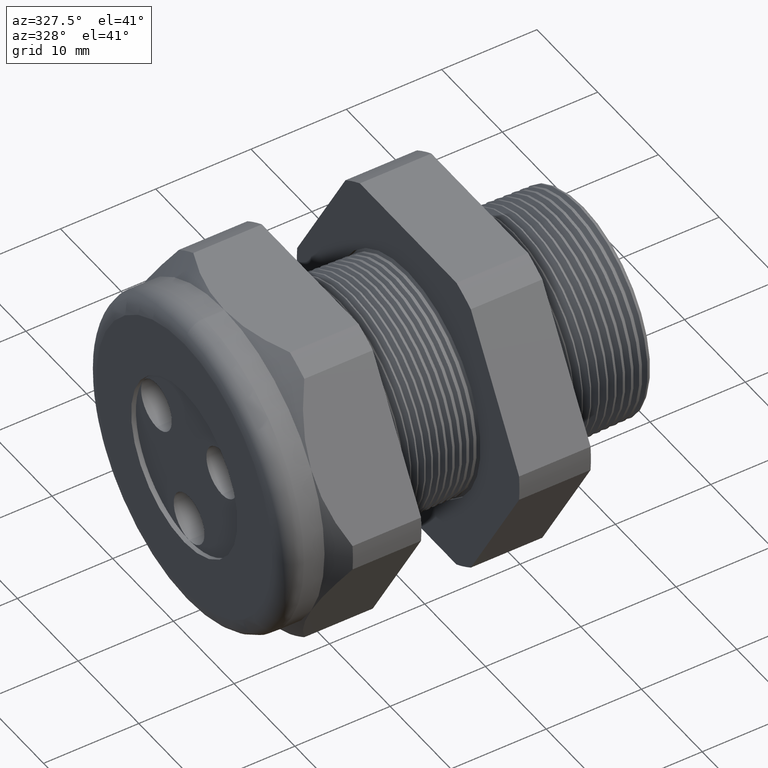
[diagram: clean part render]
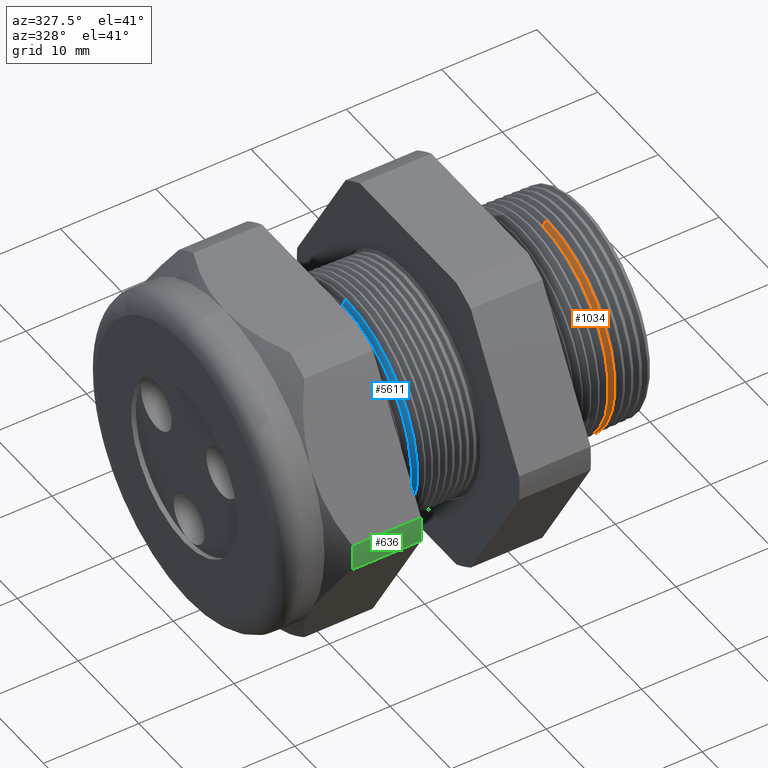
[diagram: same view with three faces highlighted in distinct colors, each labeled with its STEP entity id]
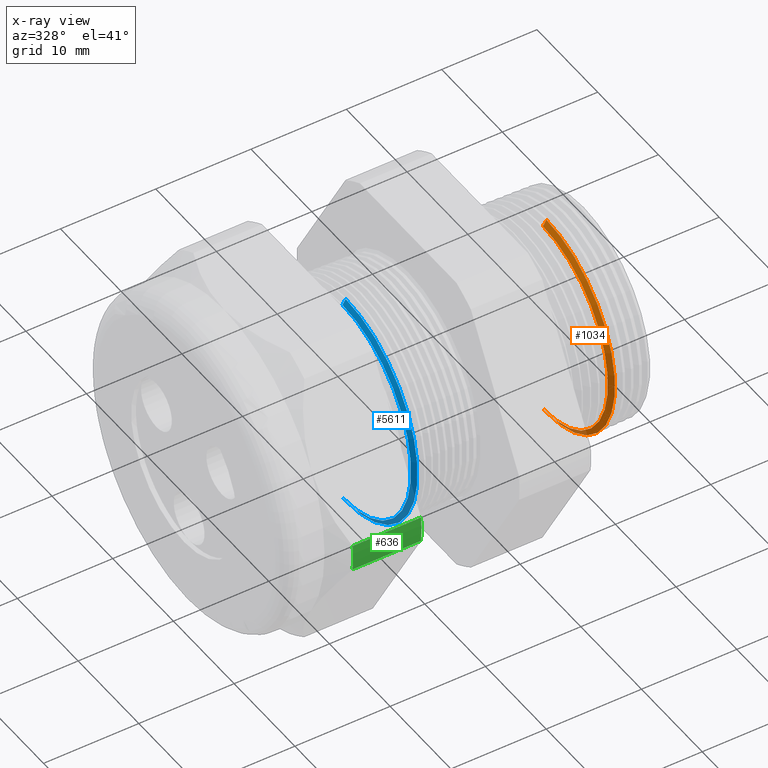
[diagram: x-ray of the same camera — body ghosted, the three highlighted faces saturated]
A machine part, auxiliary view with three faces highlighted in distinct colors.
The next image is the same camera in x-ray (body ghosted, the three faces saturated) — at least one of them is partly hidden behind the body in this view.
Their STEP definitions:

[orange] entity #1034 — the highlighted conical surface has half-angle 58.5 deg.
#1031 = EDGE_CURVE ( 'NONE', #1495, #1494, #3548, .T. ) ;
#1034 = ADVANCED_FACE ( 'NONE', ( #3607 ), #3606, .T. ) ;
#1035 = EDGE_LOOP ( 'NONE', ( #1036, #1037, #1038, #1090 ) ) ;
#1036 = ORIENTED_EDGE ( 'NONE', *, *, #1500, .F. ) ;
#1037 = ORIENTED_EDGE ( 'NONE', *, *, #1031, .T. ) ;
#1038 = ORIENTED_EDGE ( 'NONE', *, *, #1442, .T. ) ;
#1090 = ORIENTED_EDGE ( 'NONE', *, *, #5669, .T. ) ;
#1440 = VERTEX_POINT ( 'NONE', #4242 ) ;
#1442 = EDGE_CURVE ( 'NONE', #1494, #1440, #4303, .T. ) ;
#1486 = VERTEX_POINT ( 'NONE', #4394 ) ;
#1494 = VERTEX_POINT ( 'NONE', #4378 ) ;
#1495 = VERTEX_POINT ( 'NONE', #4377 ) ;
#1500 = EDGE_CURVE ( 'NONE', #1495, #1486, #4371, .T. ) ;
#3546 = DIRECTION ( 'NONE',  ( 1.000000000000000000, 0.0000000000000000000, 0.0000000000000000000 ) ) ;
#3547 = AXIS2_PLACEMENT_3D ( 'NONE', #3552, #3546, #3608 ) ;
#3548 = CIRCLE ( 'NONE', #3547, 0.4212184895733915900 ) ;
#3552 = CARTESIAN_POINT ( 'NONE',  ( -0.04847073567907520000, 0.0000000000000000000, 0.0000000000000000000 ) ) ;
#3601 = DIRECTION ( 'NONE',  ( 0.0000000000000000000, 0.0000000000000000000, -1.000000000000000000 ) ) ;
#3602 = DIRECTION ( 'NONE',  ( 1.000000000000000000, 0.0000000000000000000, 0.0000000000000000000 ) ) ;
#3603 = CARTESIAN_POINT ( 'NONE',  ( -0.04847073567907520000, 0.0000000000000000000, 0.0000000000000000000 ) ) ;
#3604 = AXIS2_PLACEMENT_3D ( 'NONE', #3603, #3602, #3601 ) ;
#3606 = CONICAL_SURFACE ( 'NONE', #3604, 0.4212184895733915900, 1.021017612416699400 ) ;
#3607 = FACE_OUTER_BOUND ( 'NONE', #1035, .T. ) ;
#3608 = DIRECTION ( 'NONE',  ( 0.0000000000000000000, 0.0000000000000000000, -1.000000000000000000 ) ) ;
#4242 = CARTESIAN_POINT ( 'NONE',  ( -0.03424021830932415200, 5.442827378131301400E-017, -0.4444405833519353700 ) ) ;
#4300 = DIRECTION ( 'NONE',  ( 0.5224985647159347000, 0.0000000000000000000, -0.8526401643541008400 ) ) ;
#4301 = VECTOR ( 'NONE', #4300, 39.37007874015748100 ) ;
#4302 = CARTESIAN_POINT ( 'NONE',  ( -0.04847073567907520000, 0.0000000000000000000, -0.4212184895733915900 ) ) ;
#4303 = LINE ( 'NONE', #4302, #4301 ) ;
#4369 = DIRECTION ( 'NONE',  ( 0.5224985647159347000, 1.044183048100722800E-016, 0.8526401643541008400 ) ) ;
#4370 = CARTESIAN_POINT ( 'NONE',  ( -0.04847073567907520000, 5.158438749977368000E-017, 0.4212184895733915900 ) ) ;
#4371 = LINE ( 'NONE', #4370, #4430 ) ;
#4377 = CARTESIAN_POINT ( 'NONE',  ( -0.04847073567907520000, 0.0000000000000000000, 0.4212184895733915900 ) ) ;
#4378 = CARTESIAN_POINT ( 'NONE',  ( -0.04847073567907520000, 5.304998578798863200E-017, -0.4212184895733915900 ) ) ;
#4394 = CARTESIAN_POINT ( 'NONE',  ( -0.03424021830932415200, 0.0000000000000000000, 0.4444405833519353700 ) ) ;
#4430 = VECTOR ( 'NONE', #4369, 39.37007874015748100 ) ;
#5157 = DIRECTION ( 'NONE',  ( 0.0000000000000000000, 0.0000000000000000000, -1.000000000000000000 ) ) ;
#5158 = DIRECTION ( 'NONE',  ( -1.000000000000000000, 0.0000000000000000000, 0.0000000000000000000 ) ) ;
#5159 = CARTESIAN_POINT ( 'NONE',  ( -0.03424021830932415200, 0.0000000000000000000, 0.0000000000000000000 ) ) ;
#5160 = AXIS2_PLACEMENT_3D ( 'NONE', #5159, #5158, #5157 ) ;
#5161 = CIRCLE ( 'NONE', #5160, 0.4444405833519353700 ) ;
#5669 = EDGE_CURVE ( 'NONE', #1440, #1486, #5161, .T. ) ;

[blue] entity #5611 — the highlighted conical surface has half-angle 58.5 deg.
#284 = VERTEX_POINT ( 'NONE', #2106 ) ;
#285 = VERTEX_POINT ( 'NONE', #2105 ) ;
#286 = VERTEX_POINT ( 'NONE', #2166 ) ;
#291 = EDGE_CURVE ( 'NONE', #286, #297, #2155, .T. ) ;
#296 = EDGE_CURVE ( 'NONE', #284, #285, #2149, .T. ) ;
#297 = VERTEX_POINT ( 'NONE', #2141 ) ;
#469 = EDGE_CURVE ( 'NONE', #297, #285, #2492, .T. ) ;
#2105 = CARTESIAN_POINT ( 'NONE',  ( -0.8633525379665555300, 0.0000000000000000000, 0.4661516535265203800 ) ) ;
#2106 = CARTESIAN_POINT ( 'NONE',  ( -0.8765405736958171700, 0.0000000000000000000, 0.4446307351718083400 ) ) ;
#2141 = CARTESIAN_POINT ( 'NONE',  ( -0.8633525379665555300, 5.708711304084992300E-017, -0.4661516535265203800 ) ) ;
#2142 = DIRECTION ( 'NONE',  ( 0.5224985647159348100, 1.044183048100722500E-016, 0.8526401643541007300 ) ) ;
#2143 = VECTOR ( 'NONE', #2142, 39.37007874015748900 ) ;
#2144 = CARTESIAN_POINT ( 'NONE',  ( -0.8765405736958171700, 5.445156066306895900E-017, 0.4446307351718083400 ) ) ;
#2149 = LINE ( 'NONE', #2144, #2143 ) ;
#2152 = DIRECTION ( 'NONE',  ( 0.5224985647159348100, 0.0000000000000000000, -0.8526401643541007300 ) ) ;
#2153 = VECTOR ( 'NONE', #2152, 39.37007874015748900 ) ;
#2154 = CARTESIAN_POINT ( 'NONE',  ( -0.8765405736958171700, 0.0000000000000000000, -0.4446307351718083400 ) ) ;
#2155 = LINE ( 'NONE', #2154, #2153 ) ;
#2166 = CARTESIAN_POINT ( 'NONE',  ( -0.8765405736958171700, 5.580979396460794700E-017, -0.4446307351718083400 ) ) ;
#2488 = DIRECTION ( 'NONE',  ( 0.0000000000000000000, 0.0000000000000000000, -1.000000000000000000 ) ) ;
#2489 = DIRECTION ( 'NONE',  ( -1.000000000000000000, 0.0000000000000000000, 0.0000000000000000000 ) ) ;
#2490 = CARTESIAN_POINT ( 'NONE',  ( -0.8633525379665555300, 0.0000000000000000000, 0.0000000000000000000 ) ) ;
#2491 = AXIS2_PLACEMENT_3D ( 'NONE', #2490, #2489, #2488 ) ;
#2492 = CIRCLE ( 'NONE', #2491, 0.4661516535265203300 ) ;
#5006 = DIRECTION ( 'NONE',  ( 0.0000000000000000000, 0.0000000000000000000, -1.000000000000000000 ) ) ;
#5007 = DIRECTION ( 'NONE',  ( 1.000000000000000000, 0.0000000000000000000, 0.0000000000000000000 ) ) ;
#5008 = CARTESIAN_POINT ( 'NONE',  ( -0.8765405736958171700, 0.0000000000000000000, 0.0000000000000000000 ) ) ;
#5009 = AXIS2_PLACEMENT_3D ( 'NONE', #5008, #5007, #5006 ) ;
#5010 = FACE_OUTER_BOUND ( 'NONE', #5607, .T. ) ;
#5015 = CIRCLE ( 'NONE', #5009, 0.4446307351718083400 ) ;
#5066 = DIRECTION ( 'NONE',  ( 0.0000000000000000000, 0.0000000000000000000, -1.000000000000000000 ) ) ;
#5067 = DIRECTION ( 'NONE',  ( 1.000000000000000000, 0.0000000000000000000, 0.0000000000000000000 ) ) ;
#5068 = AXIS2_PLACEMENT_3D ( 'NONE', #5071, #5067, #5066 ) ;
#5069 = CONICAL_SURFACE ( 'NONE', #5068, 0.4446307351718083400, 1.021017612416699200 ) ;
#5071 = CARTESIAN_POINT ( 'NONE',  ( -0.8765405736958171700, 0.0000000000000000000, 0.0000000000000000000 ) ) ;
#5451 = ORIENTED_EDGE ( 'NONE', *, *, #469, .T. ) ;
#5452 = ORIENTED_EDGE ( 'NONE', *, *, #291, .T. ) ;
#5453 = ORIENTED_EDGE ( 'NONE', *, *, #5610, .T. ) ;
#5607 = EDGE_LOOP ( 'NONE', ( #5608, #5453, #5452, #5451 ) ) ;
#5608 = ORIENTED_EDGE ( 'NONE', *, *, #296, .F. ) ;
#5610 = EDGE_CURVE ( 'NONE', #284, #286, #5015, .T. ) ;
#5611 = ADVANCED_FACE ( 'NONE', ( #5010 ), #5069, .T. ) ;

[green] entity #636 — the highlighted cylindrical surface (partial cylindrical patch) has radius 18.3261 mm, axis along (-1, 0, 0).
#617 = VERTEX_POINT ( 'NONE', #2744 ) ;
#619 = EDGE_LOOP ( 'NONE', ( #649, #647, #646, #640 ) ) ;
#623 = EDGE_CURVE ( 'NONE', #626, #617, #2793, .T. ) ;
#626 = VERTEX_POINT ( 'NONE', #2784 ) ;
#635 = EDGE_CURVE ( 'NONE', #644, #641, #2818, .T. ) ;
#636 = ADVANCED_FACE ( 'NONE', ( #2809 ), #2808, .T. ) ;
#639 = EDGE_CURVE ( 'NONE', #641, #617, #2799, .T. ) ;
#640 = ORIENTED_EDGE ( 'NONE', *, *, #645, .F. ) ;
#641 = VERTEX_POINT ( 'NONE', #2794 ) ;
#644 = VERTEX_POINT ( 'NONE', #2854 ) ;
#645 = EDGE_CURVE ( 'NONE', #644, #626, #2852, .T. ) ;
#646 = ORIENTED_EDGE ( 'NONE', *, *, #623, .F. ) ;
#647 = ORIENTED_EDGE ( 'NONE', *, *, #639, .T. ) ;
#649 = ORIENTED_EDGE ( 'NONE', *, *, #635, .T. ) ;
#2744 = CARTESIAN_POINT ( 'NONE',  ( -1.293145669291338600, -0.7194909755756819800, -0.05380507471562082100 ) ) ;
#2784 = CARTESIAN_POINT ( 'NONE',  ( -1.010314960629921100, -0.7194909755756819800, -0.05380507471562082100 ) ) ;
#2785 = DIRECTION ( 'NONE',  ( -1.000000000000000000, 0.0000000000000000000, 0.0000000000000000000 ) ) ;
#2786 = VECTOR ( 'NONE', #2785, 39.37007874015748100 ) ;
#2787 = CARTESIAN_POINT ( 'NONE',  ( 0.1200000000000000900, -0.7194909755756819800, -0.05380507471562082100 ) ) ;
#2793 = LINE ( 'NONE', #2787, #2786 ) ;
#2794 = CARTESIAN_POINT ( 'NONE',  ( -1.293145669291338600, -0.7194909755756819800, 0.05380507471562022400 ) ) ;
#2795 = DIRECTION ( 'NONE',  ( 0.0000000000000000000, 0.0000000000000000000, -1.000000000000000000 ) ) ;
#2796 = DIRECTION ( 'NONE',  ( 1.000000000000000000, 0.0000000000000000000, 0.0000000000000000000 ) ) ;
#2797 = CARTESIAN_POINT ( 'NONE',  ( -1.293145669291338600, 0.0000000000000000000, 0.0000000000000000000 ) ) ;
#2798 = AXIS2_PLACEMENT_3D ( 'NONE', #2797, #2796, #2795 ) ;
#2799 = CIRCLE ( 'NONE', #2798, 0.7215000000000000300 ) ;
#2803 = DIRECTION ( 'NONE',  ( 0.0000000000000000000, 0.0000000000000000000, 1.000000000000000000 ) ) ;
#2804 = DIRECTION ( 'NONE',  ( -1.000000000000000000, 0.0000000000000000000, 0.0000000000000000000 ) ) ;
#2805 = CARTESIAN_POINT ( 'NONE',  ( 0.1200000000000000900, 0.0000000000000000000, 0.0000000000000000000 ) ) ;
#2806 = AXIS2_PLACEMENT_3D ( 'NONE', #2805, #2804, #2803 ) ;
#2808 = CYLINDRICAL_SURFACE ( 'NONE', #2806, 0.7215000000000000300 ) ;
#2809 = FACE_OUTER_BOUND ( 'NONE', #619, .T. ) ;
#2810 = DIRECTION ( 'NONE',  ( -1.000000000000000000, 0.0000000000000000000, 0.0000000000000000000 ) ) ;
#2811 = VECTOR ( 'NONE', #2810, 39.37007874015748100 ) ;
#2812 = CARTESIAN_POINT ( 'NONE',  ( 0.1200000000000000900, -0.7194909755756819800, 0.05380507471562025900 ) ) ;
#2818 = LINE ( 'NONE', #2812, #2811 ) ;
#2848 = DIRECTION ( 'NONE',  ( 0.0000000000000000000, 0.0000000000000000000, -1.000000000000000000 ) ) ;
#2849 = DIRECTION ( 'NONE',  ( 1.000000000000000000, 0.0000000000000000000, 0.0000000000000000000 ) ) ;
#2850 = CARTESIAN_POINT ( 'NONE',  ( -1.010314960629921100, 0.0000000000000000000, 0.0000000000000000000 ) ) ;
#2851 = AXIS2_PLACEMENT_3D ( 'NONE', #2850, #2849, #2848 ) ;
#2852 = CIRCLE ( 'NONE', #2851, 0.7215000000000000300 ) ;
#2854 = CARTESIAN_POINT ( 'NONE',  ( -1.010314960629921100, -0.7194909755756819800, 0.05380507471562025900 ) ) ;